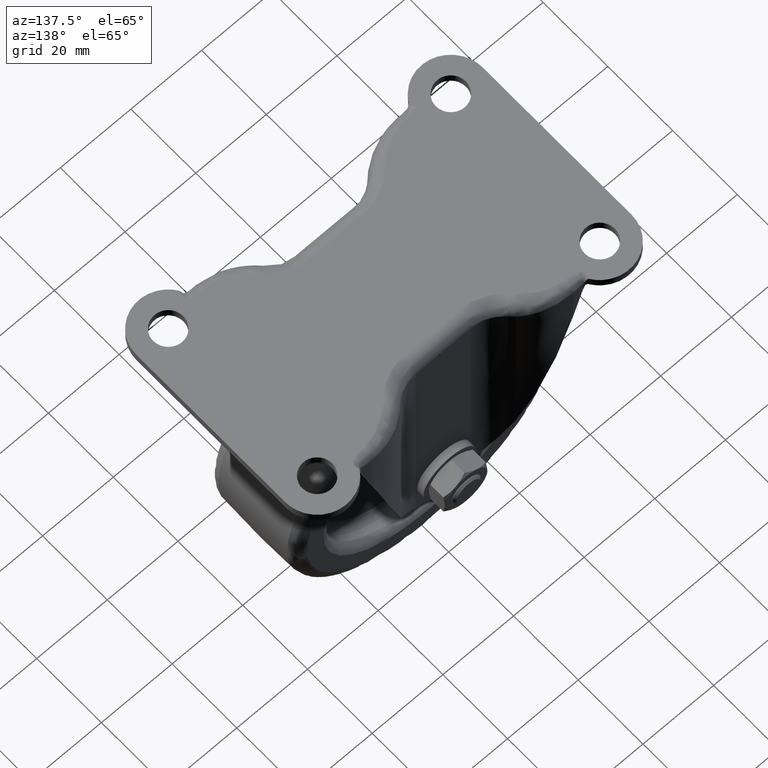
[diagram: clean part render]
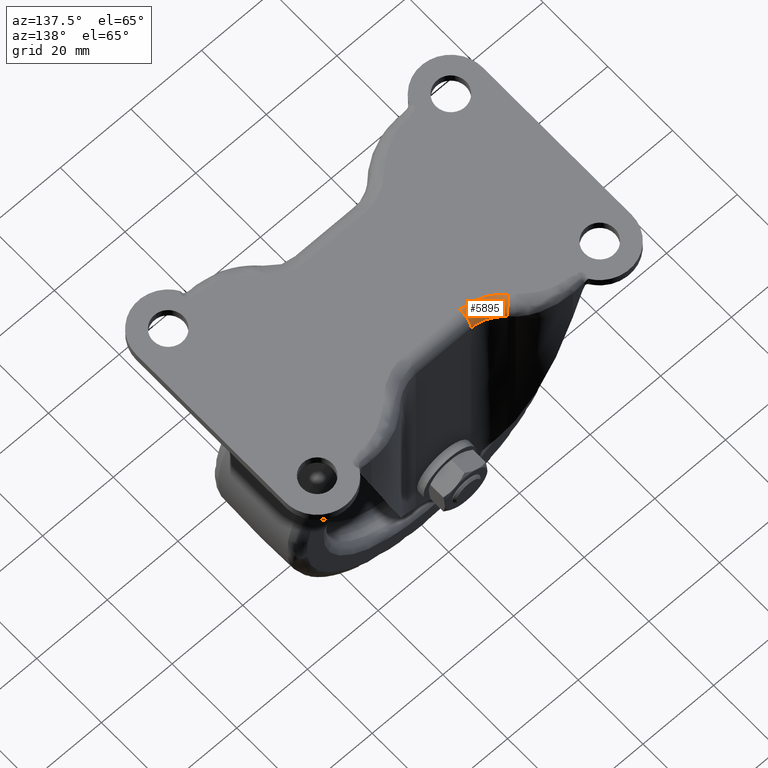
[diagram: same view with one face highlighted and labeled with its STEP entity id]
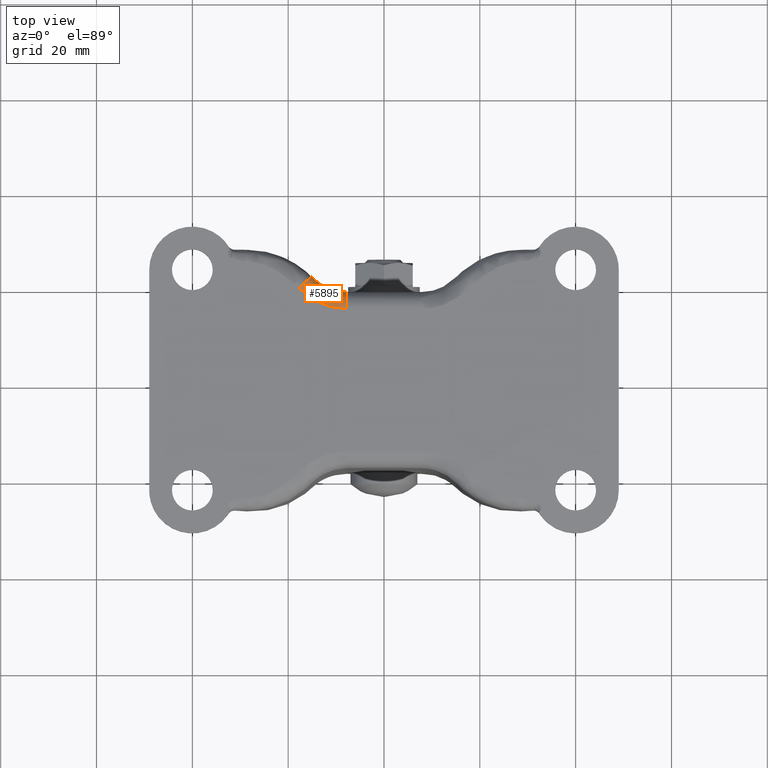
[diagram: same view with one face highlighted and labeled with its STEP entity id]
A machine part, auxiliary view. The second image highlights one B-rep face of the part: STEP entity #5895.
A second angle (top view) of the same face is appended — the face is thin or edge-on in the first view.
In plain terms, the highlighted face is a freeform B-spline surface patch.
Its self-contained STEP definition (entity closure, byte-faithful):
#5801=CARTESIAN_POINT('',(-7.828835999999789,18.399999999999999,-3.499999999999950));
#5802=VERTEX_POINT('',#5801);
#5803=CARTESIAN_POINT('',(-7.828835999999789,14.900000000000000,0.0));
#5804=VERTEX_POINT('',#5803);
#5805=CARTESIAN_POINT('',(-7.828835999999789,18.399999999999999,-3.499999999999950));
#5806=CARTESIAN_POINT('',(-7.828835999999789,18.399999999999995,4.987330E-014));
#5807=CARTESIAN_POINT('',(-7.828835999999789,14.900000000000000,0.0));
#5815=(BOUNDED_CURVE()B_SPLINE_CURVE(2,(#5805,#5806,#5807),.UNSPECIFIED.,.F.,.U.)CURVE()GEOMETRIC_REPRESENTATION_ITEM()QUASI_UNIFORM_CURVE()RATIONAL_B_SPLINE_CURVE((1.0,0.707106781186547,1.0))REPRESENTATION_ITEM(''));
#5816=EDGE_CURVE('',#5802,#5804,#5815,.T.);
#5832=CARTESIAN_POINT('',(-18.272056377408148,19.466819171393574,-0.008426838625658));
#5833=CARTESIAN_POINT('',(-13.939946984689005,14.402422294714174,-0.008426838625658));
#5834=CARTESIAN_POINT('',(-7.280769326782723,14.668204979340564,-0.008426838625658));
#5835=CARTESIAN_POINT('',(-15.221162543225555,22.076568398613954,0.270675995928173));
#5836=CARTESIAN_POINT('',(-12.154640331242639,18.491689969935461,0.270675995928173));
#5837=CARTESIAN_POINT('',(-7.440882124713919,18.679826610099045,0.270675995928173));
#5838=CARTESIAN_POINT('',(-15.434397198060205,21.894166451539842,-3.744034843019985));
#5839=CARTESIAN_POINT('',(-12.279419910183192,18.205880751835988,-3.744034843019984));
#5840=CARTESIAN_POINT('',(-7.429691437965357,18.399444269626319,-3.744034843019986));
#5848=(BOUNDED_SURFACE()B_SPLINE_SURFACE(2,2,((#5832,#5835,#5838),(#5833,#5836,#5839),(#5834,#5837,#5840)),.UNSPECIFIED.,.F.,.F.,.U.)B_SPLINE_SURFACE_WITH_KNOTS((3,3),(3,3),(0.0,12.625792022191931),(0.0,6.378297517648390),.UNSPECIFIED.)GEOMETRIC_REPRESENTATION_ITEM()RATIONAL_B_SPLINE_SURFACE(((0.857589697588925,0.561210663251604,0.852839292385986),(0.769956903740076,0.503863357778168,0.765691918640734),(0.853848661193544,0.558762511737421,0.849118978532873)))REPRESENTATION_ITEM('')SURFACE());
#5849=CARTESIAN_POINT('',(-15.163778496053350,21.603043432565698,-3.499999999999950));
#5850=VERTEX_POINT('',#5849);
#5851=CARTESIAN_POINT('',(-17.731008369672050,19.224108633963699,0.0));
#5852=VERTEX_POINT('',#5851);
#5853=CARTESIAN_POINT('',(-15.163778496053320,21.603043432565698,-3.499999999999950));
#5854=CARTESIAN_POINT('',(-15.163778496053324,21.603043432565705,4.987330E-014));
#5855=CARTESIAN_POINT('',(-17.731008369672050,19.224108633963699,4.987330E-014));
#5863=(BOUNDED_CURVE()B_SPLINE_CURVE(2,(#5853,#5854,#5855),.UNSPECIFIED.,.F.,.U.)CURVE()GEOMETRIC_REPRESENTATION_ITEM()QUASI_UNIFORM_CURVE()RATIONAL_B_SPLINE_CURVE((1.0,0.707106781186547,1.0))REPRESENTATION_ITEM(''));
#5864=EDGE_CURVE('',#5850,#5852,#5863,.T.);
#5865=ORIENTED_EDGE('',*,*,#5864,.T.);
#5866=CARTESIAN_POINT('',(-7.828835999999799,14.900000000000000,0.0));
#5867=CARTESIAN_POINT('',(-13.724054178315768,14.900000000000004,0.0));
#5868=CARTESIAN_POINT('',(-17.731008369672050,19.224108633963709,0.0));
#5876=(BOUNDED_CURVE()B_SPLINE_CURVE(2,(#5866,#5867,#5868),.UNSPECIFIED.,.F.,.U.)CURVE()GEOMETRIC_REPRESENTATION_ITEM()QUASI_UNIFORM_CURVE()RATIONAL_B_SPLINE_CURVE((1.0,0.916432118801886,1.0))REPRESENTATION_ITEM(''));
#5877=EDGE_CURVE('',#5804,#5852,#5876,.T.);
#5878=ORIENTED_EDGE('',*,*,#5877,.F.);
#5879=ORIENTED_EDGE('',*,*,#5816,.F.);
#5880=CARTESIAN_POINT('',(-15.163778496053331,21.603043432565720,-3.499999999999950));
#5881=CARTESIAN_POINT('',(-12.195664280233867,18.399999999999995,-3.499999999999950));
#5882=CARTESIAN_POINT('',(-7.828835999999799,18.399999999999999,-3.499999999999950));
#5890=(BOUNDED_CURVE()B_SPLINE_CURVE(2,(#5880,#5881,#5882),.UNSPECIFIED.,.F.,.U.)CURVE()GEOMETRIC_REPRESENTATION_ITEM()QUASI_UNIFORM_CURVE()RATIONAL_B_SPLINE_CURVE((1.0,0.916432118801886,1.0))REPRESENTATION_ITEM(''));
#5891=EDGE_CURVE('',#5850,#5802,#5890,.T.);
#5892=ORIENTED_EDGE('',*,*,#5891,.F.);
#5893=EDGE_LOOP('',(#5865,#5878,#5879,#5892));
#5894=FACE_OUTER_BOUND('',#5893,.T.);
#5895=ADVANCED_FACE('',(#5894),#5848,.T.);